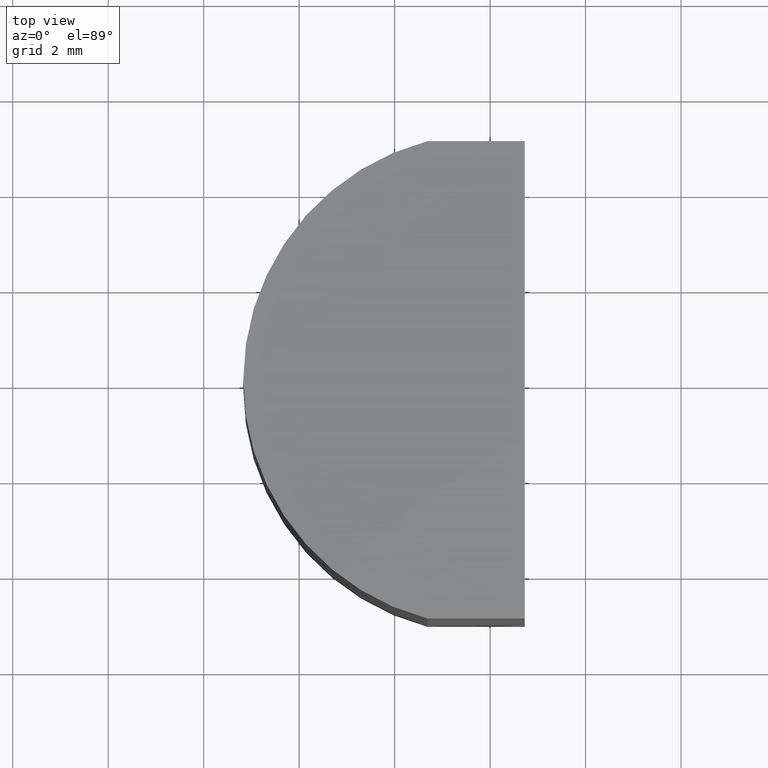
[diagram: clean part render]
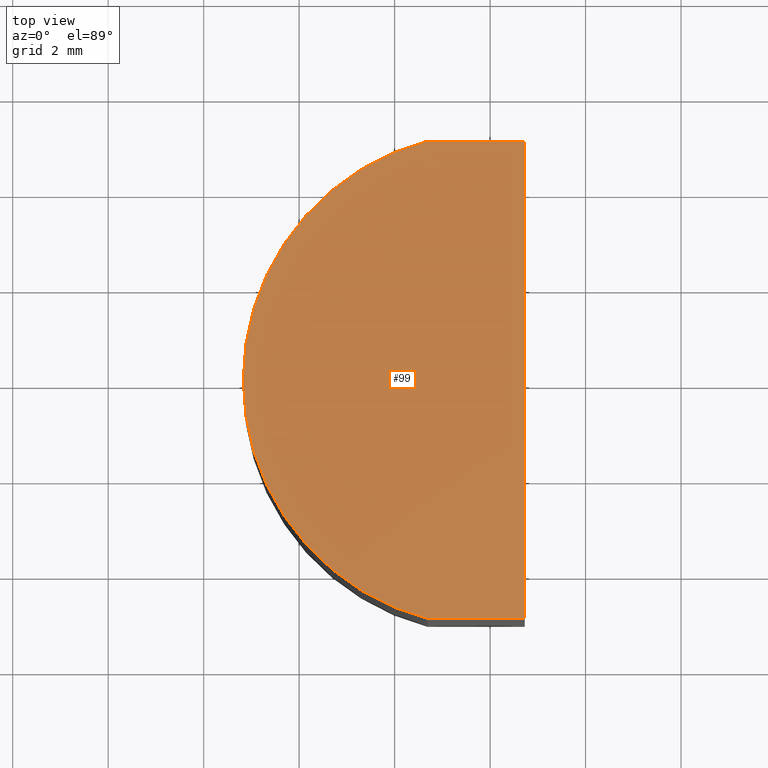
[diagram: same view with one face highlighted and labeled with its STEP entity id]
A machine part, top view. The second image highlights one B-rep face of the part: STEP entity #99.
In plain terms, the highlighted planar face has unit normal (0, 0, 1).
Its self-contained STEP definition (entity closure, byte-faithful):
#2 = AXIS2_PLACEMENT_3D ( 'NONE', #225, #198, #118 ) ;
#16 = DIRECTION ( 'NONE',  ( -0.000000000000000000, 1.000000000000000000, -0.000000000000000000 ) ) ;
#21 = VERTEX_POINT ( 'NONE', #245 ) ;
#22 = ORIENTED_EDGE ( 'NONE', *, *, #200, .T. ) ;
#24 = CARTESIAN_POINT ( 'NONE',  ( 0.7251235799513326974, 5.000000000000000000, 10.00000000000000000 ) ) ;
#44 = EDGE_CURVE ( 'NONE', #70, #83, #263, .T. ) ;
#51 = ORIENTED_EDGE ( 'NONE', *, *, #247, .T. ) ;
#54 = CARTESIAN_POINT ( 'NONE',  ( -5.169999999999999929, 0.000000000000000000, 10.00000000000000000 ) ) ;
#61 = FACE_OUTER_BOUND ( 'NONE', #208, .T. ) ;
#63 = VECTOR ( 'NONE', #241, 1000.000000000000000 ) ;
#70 = VERTEX_POINT ( 'NONE', #24 ) ;
#73 = AXIS2_PLACEMENT_3D ( 'NONE', #95, #182, #180 ) ;
#75 = CARTESIAN_POINT ( 'NONE',  ( 0.7251235799513326974, 5.000000000000000000, 10.00000000000000000 ) ) ;
#83 = VERTEX_POINT ( 'NONE', #113 ) ;
#95 = CARTESIAN_POINT ( 'NONE',  ( 0.000000000000000000, 0.000000000000000000, 10.00000000000000000 ) ) ;
#99 = ADVANCED_FACE ( 'NONE', ( #61 ), #197, .T. ) ;
#105 = DIRECTION ( 'NONE',  ( -1.000000000000000000, -0.000000000000000000, -0.000000000000000000 ) ) ;
#109 = CARTESIAN_POINT ( 'NONE',  ( -1.314876420048667560, 5.000000000000000000, 10.00000000000000000 ) ) ;
#113 = CARTESIAN_POINT ( 'NONE',  ( -1.314876420048667560, 5.000000000000000000, 10.00000000000000000 ) ) ;
#114 = LINE ( 'NONE', #75, #246 ) ;
#118 = DIRECTION ( 'NONE',  ( 1.000000000000000000, 0.000000000000000000, 0.000000000000000000 ) ) ;
#126 = ORIENTED_EDGE ( 'NONE', *, *, #44, .T. ) ;
#143 = EDGE_CURVE ( 'NONE', #21, #170, #215, .T. ) ;
#149 = CARTESIAN_POINT ( 'NONE',  ( 0.000000000000000000, 0.000000000000000000, 10.00000000000000000 ) ) ;
#150 = AXIS2_PLACEMENT_3D ( 'NONE', #149, #176, #265 ) ;
#170 = VERTEX_POINT ( 'NONE', #248 ) ;
#176 = DIRECTION ( 'NONE',  ( 0.000000000000000000, 0.000000000000000000, 1.000000000000000000 ) ) ;
#180 = DIRECTION ( 'NONE',  ( 1.000000000000000000, 0.000000000000000000, 0.000000000000000000 ) ) ;
#182 = DIRECTION ( 'NONE',  ( 0.000000000000000000, 0.000000000000000000, 1.000000000000000000 ) ) ;
#183 = VECTOR ( 'NONE', #105, 1000.000000000000000 ) ;
#186 = VERTEX_POINT ( 'NONE', #54 ) ;
#191 = CARTESIAN_POINT ( 'NONE',  ( -1.314876420048667560, -5.000000000000000000, 10.00000000000000000 ) ) ;
#197 = PLANE ( 'NONE',  #150 ) ;
#198 = DIRECTION ( 'NONE',  ( 0.000000000000000000, 0.000000000000000000, 1.000000000000000000 ) ) ;
#200 = EDGE_CURVE ( 'NONE', #186, #21, #205, .T. ) ;
#205 = CIRCLE ( 'NONE', #2, 5.169999999999999929 ) ;
#208 = EDGE_LOOP ( 'NONE', ( #210, #22, #238, #51, #126 ) ) ;
#210 = ORIENTED_EDGE ( 'NONE', *, *, #273, .T. ) ;
#215 = LINE ( 'NONE', #191, #63 ) ;
#225 = CARTESIAN_POINT ( 'NONE',  ( 0.000000000000000000, 0.000000000000000000, 10.00000000000000000 ) ) ;
#238 = ORIENTED_EDGE ( 'NONE', *, *, #143, .T. ) ;
#241 = DIRECTION ( 'NONE',  ( 1.000000000000000000, 0.000000000000000000, 0.000000000000000000 ) ) ;
#245 = CARTESIAN_POINT ( 'NONE',  ( -1.314876420048667560, -5.000000000000000000, 10.00000000000000000 ) ) ;
#246 = VECTOR ( 'NONE', #16, 1000.000000000000000 ) ;
#247 = EDGE_CURVE ( 'NONE', #170, #70, #114, .T. ) ;
#248 = CARTESIAN_POINT ( 'NONE',  ( 0.7251235799513326974, -5.000000000000000000, 10.00000000000000000 ) ) ;
#256 = CIRCLE ( 'NONE', #73, 5.169999999999999929 ) ;
#263 = LINE ( 'NONE', #109, #183 ) ;
#265 = DIRECTION ( 'NONE',  ( 1.000000000000000000, 0.000000000000000000, -0.000000000000000000 ) ) ;
#273 = EDGE_CURVE ( 'NONE', #83, #186, #256, .T. ) ;